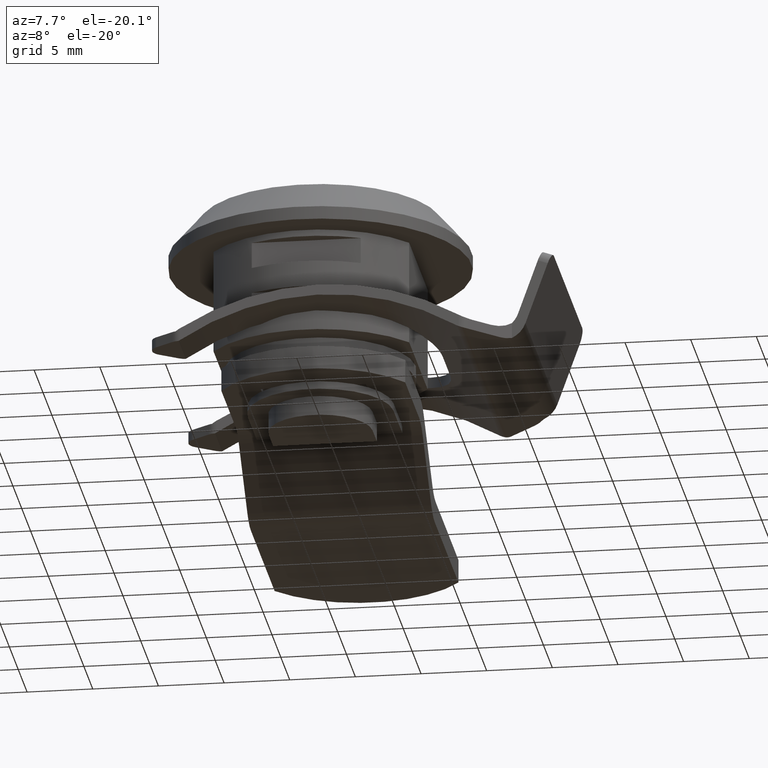
[diagram: clean part render]
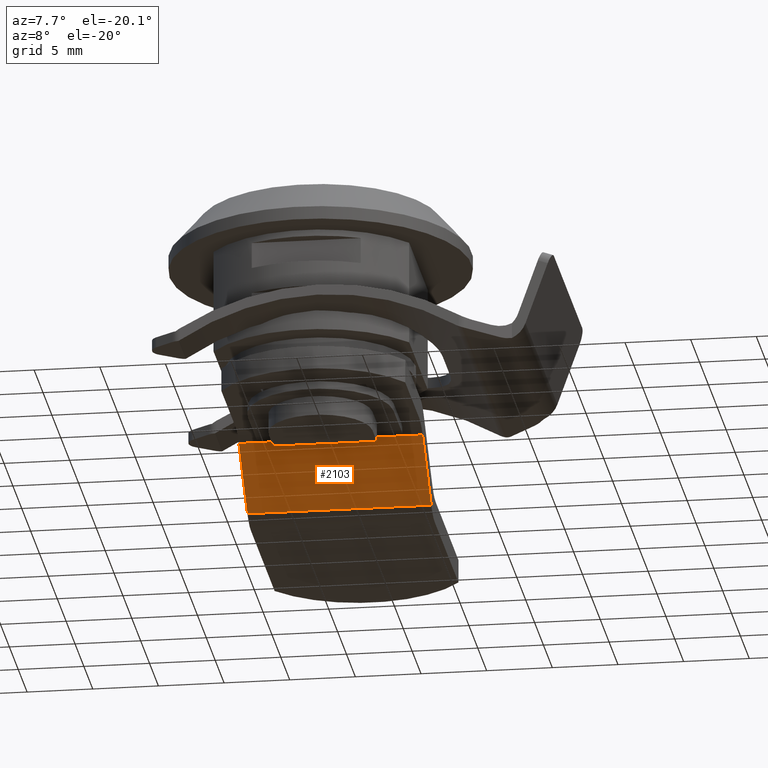
[diagram: same view with one face highlighted and labeled with its STEP entity id]
A machine part, auxiliary view. The second image highlights one B-rep face of the part: STEP entity #2103.
In plain terms, the highlighted planar face has unit normal (0, -0.6247, -0.7809).
Its self-contained STEP definition (entity closure, byte-faithful):
#187=FACE_OUTER_BOUND('',#323,.T.);
#323=EDGE_LOOP('',(#1648,#1649,#1650,#1651));
#486=LINE('',#3327,#683);
#493=LINE('',#3344,#690);
#494=LINE('',#3346,#691);
#495=LINE('',#3347,#692);
#683=VECTOR('',#2699,14.);
#690=VECTOR('',#2714,6.21937515251343);
#691=VECTOR('',#2715,14.);
#692=VECTOR('',#2716,6.21937515251343);
#955=VERTEX_POINT('',#3324);
#956=VERTEX_POINT('',#3326);
#962=VERTEX_POINT('',#3343);
#963=VERTEX_POINT('',#3345);
#1201=EDGE_CURVE('',#955,#956,#486,.T.);
#1210=EDGE_CURVE('',#962,#955,#493,.T.);
#1211=EDGE_CURVE('',#963,#962,#494,.T.);
#1212=EDGE_CURVE('',#956,#963,#495,.T.);
#1648=ORIENTED_EDGE('',*,*,#1201,.F.);
#1649=ORIENTED_EDGE('',*,*,#1210,.F.);
#1650=ORIENTED_EDGE('',*,*,#1211,.F.);
#1651=ORIENTED_EDGE('',*,*,#1212,.F.);
#2005=PLANE('',#2271);
#2103=ADVANCED_FACE('',(#187),#2005,.T.);
#2271=AXIS2_PLACEMENT_3D('',#3342,#2712,#2713);
#2699=DIRECTION('',(1.,0.,0.));
#2712=DIRECTION('center_axis',(0.,-0.624695047554425,-0.78086880944303));
#2713=DIRECTION('ref_axis',(0.,0.78086880944303,-0.624695047554425));
#2714=DIRECTION('',(0.,-0.78086880944303,0.624695047554425));
#2715=DIRECTION('',(-1.,0.,0.));
#2716=DIRECTION('',(0.,0.78086880944303,-0.624695047554425));
#3324=CARTESIAN_POINT('',(-7.,13.8217419645886,-2.45739357167091));
#3326=CARTESIAN_POINT('',(7.,13.8217419645886,-2.45739357167091));
#3327=CARTESIAN_POINT('',(0.,13.8217419645886,-2.45739357167091));
#3342=CARTESIAN_POINT('Origin',(0.,13.,-1.8));
#3343=CARTESIAN_POINT('',(-7.,18.6782580354114,-6.34260642832909));
#3344=CARTESIAN_POINT('',(-7.,13.,-1.8));
#3345=CARTESIAN_POINT('',(7.,18.6782580354114,-6.34260642832909));
#3346=CARTESIAN_POINT('',(0.,18.6782580354114,-6.34260642832909));
#3347=CARTESIAN_POINT('',(7.,13.,-1.8));